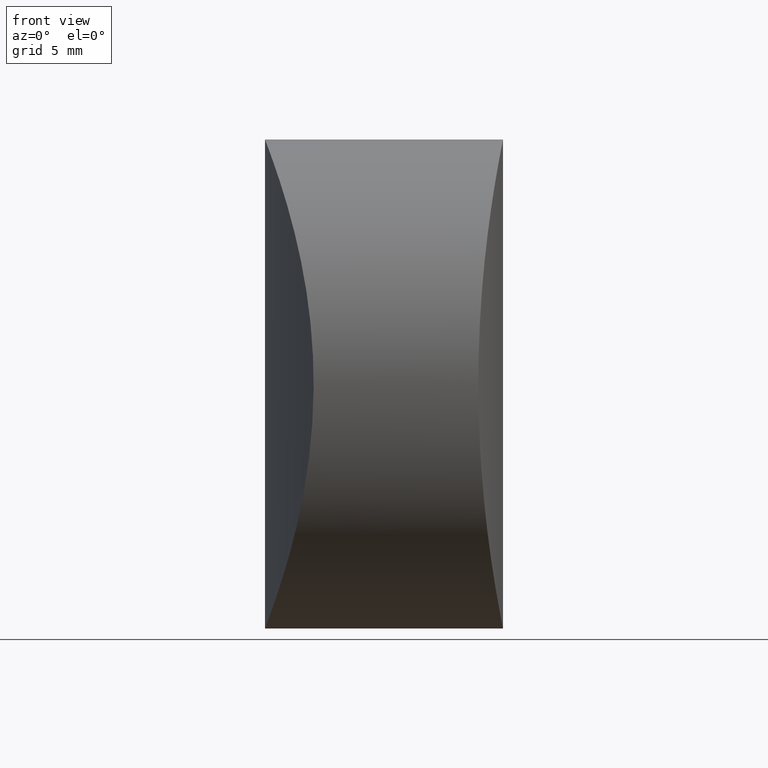
[diagram: clean part render]
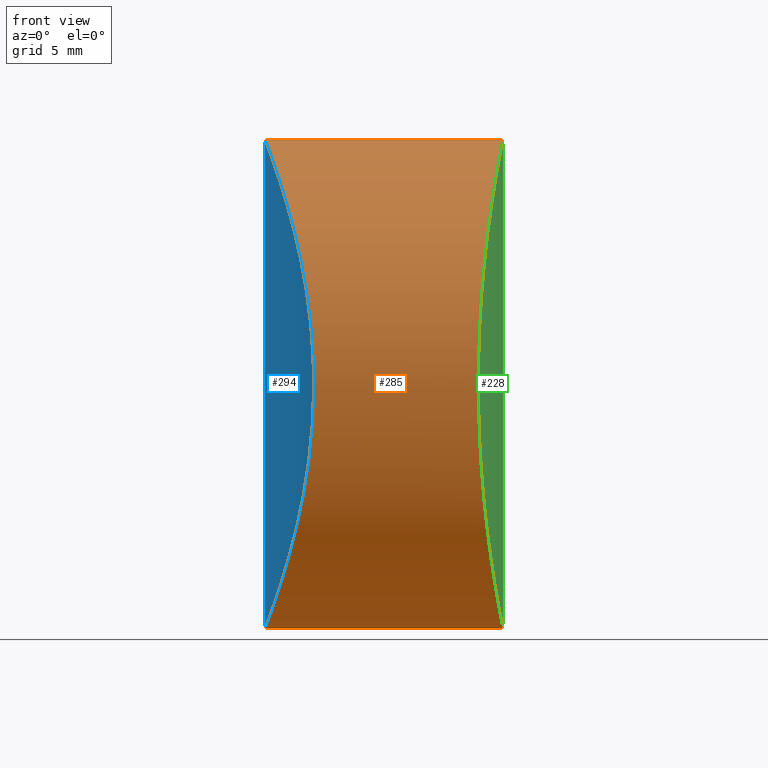
[diagram: same view with three faces highlighted in distinct colors, each labeled with its STEP entity id]
A machine part, front view with three faces highlighted in distinct colors.
Their STEP definitions:

[orange] entity #285 — the highlighted cylindrical surface (partial cylindrical patch) has radius 11.7 mm, axis along (1, -0, -0).
#5 = LINE ( 'NONE', #199, #33 ) ;
#6 = CARTESIAN_POINT ( 'NONE',  ( 2.203329720689841231, -11.39384153194677474, 14.38699747627415881 ) ) ;
#12 = CARTESIAN_POINT ( 'NONE',  ( 11.19012191953944502, -4.845000668286441936, 22.35649366731782450 ) ) ;
#13 = VERTEX_POINT ( 'NONE', #52 ) ;
#14 = CARTESIAN_POINT ( 'NONE',  ( 11.38999999999997925, -0.7746313484711072617, -7.623296525288703052E-18 ) ) ;
#15 = CARTESIAN_POINT ( 'NONE',  ( 10.76337661992678107, -8.544504710775854051, 19.70162957369397105 ) ) ;
#16 = CARTESIAN_POINT ( 'NONE',  ( 11.24508527239767730, -4.130721833659423581, 0.7467401707274722300 ) ) ;
#18 = CARTESIAN_POINT ( 'NONE',  ( 0.02984355860193690924, -1.546837325144605035, 23.32266667038803121 ) ) ;
#19 = CARTESIAN_POINT ( 'NONE',  ( 10.99255650299377152, -6.815638107333525042, 2.182499154727576496 ) ) ;
#21 = CARTESIAN_POINT ( 'NONE',  ( 0.2333021305352148966, -3.787235839957839634, 22.77682284824932779 ) ) ;
#25 = CARTESIAN_POINT ( 'NONE',  ( 0.4393118291444137458, -5.212326598288426815, 22.20276768146730006 ) ) ;
#31 = B_SPLINE_CURVE_WITH_KNOTS ( 'NONE', 3,
 ( #165, #361, #18, #358, #280, #21, #223, #25, #289, #110, #141, #206, #114, #331, #305, #344, #167, #83, #193, #191, #6, #37, #303, #333, #355, #88, #55, #107, #300, #248, #276, #364, #216, #117, #200, #150, #124, #232, #308, #95, #68, #237, #211, #183, #234, #348 ),
 .UNSPECIFIED., .F., .F.,
 ( 4, 2, 2, 2, 2, 2, 2, 2, 2, 2, 2, 2, 2, 2, 2, 2, 2, 2, 2, 2, 2, 2, 4 ),
 ( 0.05536560483768183938, 0.05767248351871658019, 0.05882592285923395059, 0.05997936219975132099, 0.06228624088078606180, 0.06343968022130343221, 0.06459311956182081649, 0.06689999824285555730, 0.06920687692389029810, 0.07036031626440766851, 0.07151375560492503891, 0.07382063428595976584, 0.07612751296699449277, 0.07728095230751186318, 0.07843439164802921970, 0.08074127032906394663, 0.08189470966958130316, 0.08304814901009865968, 0.08535502769113338661, 0.08766190637216811354, 0.08881534571268547007, 0.08996878505320282660, 0.09227566373423753965 ),
 .UNSPECIFIED. ) ;
#33 = VECTOR ( 'NONE', #58, 1000.000000000000000 ) ;
#35 = EDGE_CURVE ( 'NONE', #13, #81, #31, .T. ) ;
#37 = CARTESIAN_POINT ( 'NONE',  ( 2.296005179966759346, -11.62270594791264600, 13.24952496554009862 ) ) ;
#46 = CARTESIAN_POINT ( 'NONE',  ( 10.50622504491083831, -10.13271235799219383, 5.837919011775313471 ) ) ;
#47 = CARTESIAN_POINT ( 'NONE',  ( 10.72564368245376976, -8.808913754835984378, 3.962323986534971976 ) ) ;
#48 = CARTESIAN_POINT ( 'NONE',  ( 10.54091271044903344, -9.934096969455675108, 5.507152291055205318 ) ) ;
#49 = VERTEX_POINT ( 'NONE', #345 ) ;
#51 = CARTESIAN_POINT ( 'NONE',  ( 10.61110592407069930, -9.517653904310714452, 18.51542288815045012 ) ) ;
#52 = CARTESIAN_POINT ( 'NONE',  ( 4.449436206481902693E-15, 0.000000000000000000, 23.39999999999999858 ) ) ;
#55 = CARTESIAN_POINT ( 'NONE',  ( 2.166691515025348735, -11.30257961087441387, 8.651944902742542354 ) ) ;
#58 = DIRECTION ( 'NONE',  ( 1.000000000000000000, -0.000000000000000000, -0.000000000000000000 ) ) ;
#65 = B_SPLINE_CURVE_WITH_KNOTS ( 'NONE', 3,
 ( #163, #14, #78, #242, #157, #137, #16, #136, #189, #19, #270, #195, #85, #47, #240, #48, #46, #325, #159, #213, #271, #302, #327, #326, #264, #352, #132, #298, #103, #160, #275, #220, #354, #51, #304, #166, #15, #268, #134, #106, #241, #299, #12, #113, #133, #105, #245, #243, #353, #357 ),
 .UNSPECIFIED., .F., .F.,
 ( 4, 2, 2, 2, 2, 2, 2, 2, 2, 2, 2, 2, 2, 2, 2, 2, 2, 2, 2, 2, 2, 2, 2, 2, 4 ),
 ( 0.000000000000000000, 0.002290473230041418975, 0.003435709845062128245, 0.004580946460082837082, 0.006871419690124256491, 0.008016656305144967062, 0.009161892920165675899, 0.01145236615020709704, 0.01259760276522780241, 0.01374283938024851125, 0.01488807599526921835, 0.01603331261028992372, 0.01832378584033133792, 0.02061425907037274866, 0.02175949568539345055, 0.02290473230041414898, 0.02519520553045554584, 0.02634044214547624774, 0.02748567876049694964, 0.02977615199053836037, 0.03092138860555906574, 0.03206662522057977111, 0.03321186183560047300, 0.03435709845062118184, 0.03664757168066259257 ),
 .UNSPECIFIED. ) ;
#68 = CARTESIAN_POINT ( 'NONE',  ( 0.2352003373724248225, -3.802285619023641594, 0.6283733244599211121 ) ) ;
#69 = CARTESIAN_POINT ( 'NONE',  ( -20.00000000000000000, 1.432836755002403087E-15, 23.39999999999999858 ) ) ;
#74 = VERTEX_POINT ( 'NONE', #238 ) ;
#78 = CARTESIAN_POINT ( 'NONE',  ( 11.37463419604564052, -1.535940976776950073, 0.07616730893480527786 ) ) ;
#80 = DIRECTION ( 'NONE',  ( 1.000000000000000000, -0.000000000000000000, -0.000000000000000000 ) ) ;
#81 = VERTEX_POINT ( 'NONE', #322 ) ;
#83 = CARTESIAN_POINT ( 'NONE',  ( 2.025680596310004411, -10.94215535177057141, 15.85978225578369560 ) ) ;
#85 = CARTESIAN_POINT ( 'NONE',  ( 10.84087912694288391, -8.001901616259743832, 3.155749393242710976 ) ) ;
#88 = CARTESIAN_POINT ( 'NONE',  ( 2.204381448988872005, -11.39645168094089023, 9.024553951971117982 ) ) ;
#95 = CARTESIAN_POINT ( 'NONE',  ( 0.2826210104031649517, -4.161726287185995687, 0.7585705120081982500 ) ) ;
#103 = CARTESIAN_POINT ( 'NONE',  ( 10.28710985209049689, -11.30737688939136021, 14.73001104576472642 ) ) ;
#105 = CARTESIAN_POINT ( 'NONE',  ( 11.31157528992187089, -3.050539891455542829, 23.00181166616108541 ) ) ;
#106 = CARTESIAN_POINT ( 'NONE',  ( 11.06219887657188927, -6.193143383978470418, 21.63391341999072282 ) ) ;
#107 = CARTESIAN_POINT ( 'NONE',  ( 2.077985178345881145, -11.07714332678613367, 7.913729875734095920 ) ) ;
#110 = CARTESIAN_POINT ( 'NONE',  ( 0.7714676993486740963, -6.830949957493069213, 21.20648693102961602 ) ) ;
#113 = CARTESIAN_POINT ( 'NONE',  ( 11.24426429742982947, -4.142101250212117947, 22.64887601492828395 ) ) ;
#114 = CARTESIAN_POINT ( 'NONE',  ( 1.066384626749101949, -8.007317809831032918, 20.23905141668090835 ) ) ;
#117 = CARTESIAN_POINT ( 'NONE',  ( 1.292469386089818872, -8.797107312257725908, 3.976956997063653354 ) ) ;
#124 = CARTESIAN_POINT ( 'NONE',  ( 0.8427928073755034388, -7.157200368934555357, 2.412806143704812278 ) ) ;
#127 = DIRECTION ( 'NONE',  ( 1.000000000000000000, -0.000000000000000000, -0.000000000000000000 ) ) ;
#128 = EDGE_CURVE ( 'NONE', #13, #49, #152, .T. ) ;
#132 = CARTESIAN_POINT ( 'NONE',  ( 10.22396500224738247, -11.62380655775104543, 13.23611829673682827 ) ) ;
#133 = CARTESIAN_POINT ( 'NONE',  ( 11.26871136814263075, -3.783274938317485514, 22.77806712869331562 ) ) ;
#134 = CARTESIAN_POINT ( 'NONE',  ( 10.95493535362735926, -7.150856453735316087, 20.99224920133031702 ) ) ;
#136 = CARTESIAN_POINT ( 'NONE',  ( 11.16348420032048416, -5.192238087404311031, 1.187259222152784677 ) ) ;
#137 = CARTESIAN_POINT ( 'NONE',  ( 11.26986456937244796, -3.765577113448184132, 0.6158587178313650323 ) ) ;
#141 = CARTESIAN_POINT ( 'NONE',  ( 0.8441492237701103685, -7.139577051505185956, 20.97691678644113011 ) ) ;
#150 = CARTESIAN_POINT ( 'NONE',  ( 0.9918654042239307689, -7.742500690034104238, 2.895818075249361190 ) ) ;
#152 = LINE ( 'NONE', #69, #278 ) ;
#157 = CARTESIAN_POINT ( 'NONE',  ( 11.31265727765712903, -3.029920609330150949, 0.3925979968183618274 ) ) ;
#159 = CARTESIAN_POINT ( 'NONE',  ( 10.41154747799908975, -10.65660670264508880, 6.855249416653355077 ) ) ;
#160 = CARTESIAN_POINT ( 'NONE',  ( 10.33063240543323502, -11.08412693469862376, 15.46561670270440381 ) ) ;
#163 = CARTESIAN_POINT ( 'NONE',  ( 11.38999999999997570, 0.000000000000000000, 0.000000000000000000 ) ) ;
#165 = CARTESIAN_POINT ( 'NONE',  ( 4.449436206481902693E-15, 0.000000000000000000, 23.39999999999999858 ) ) ;
#166 = CARTESIAN_POINT ( 'NONE',  ( 10.72483795033419618, -8.800887155657946437, 19.41892752074146955 ) ) ;
#167 = CARTESIAN_POINT ( 'NONE',  ( 1.859638507971006272, -10.50243021986732295, 16.91221335979967932 ) ) ;
#173 = ORIENTED_EDGE ( 'NONE', *, *, #35, .T. ) ;
#183 = CARTESIAN_POINT ( 'NONE',  ( 0.02985549774942002771, -1.550017416828789019, 0.07734414751516439923 ) ) ;
#186 = AXIS2_PLACEMENT_3D ( 'NONE', #217, #80, #330 ) ;
#189 = CARTESIAN_POINT ( 'NONE',  ( 11.09899048988026138, -5.863226998365522746, 1.546402127066946575 ) ) ;
#191 = CARTESIAN_POINT ( 'NONE',  ( 2.164848509593687353, -11.29795058624819681, 14.76502085685476651 ) ) ;
#193 = CARTESIAN_POINT ( 'NONE',  ( 2.076050317006086221, -11.07216898665752502, 15.50067286584362591 ) ) ;
#195 = CARTESIAN_POINT ( 'NONE',  ( 10.87934292869398334, -7.719189746639965044, 2.899341339868234169 ) ) ;
#199 = CARTESIAN_POINT ( 'NONE',  ( -20.00000000000000000, 0.000000000000000000, 0.000000000000000000 ) ) ;
#200 = CARTESIAN_POINT ( 'NONE',  ( 1.217054262653216368, -8.542948001562418625, 3.696842903114930579 ) ) ;
#206 = CARTESIAN_POINT ( 'NONE',  ( 0.9915028469543601952, -7.727180853317330289, 20.49348745362491186 ) ) ;
#211 = CARTESIAN_POINT ( 'NONE',  ( 0.1160532312630918189, -2.687819650294078322, 0.3063484215140153122 ) ) ;
#212 = CYLINDRICAL_SURFACE ( 'NONE', #186, 11.69999999999999929 ) ;
#213 = CARTESIAN_POINT ( 'NONE',  ( 10.35662576223147369, -10.94895943076386757, 7.558120956234373189 ) ) ;
#214 = EDGE_CURVE ( 'NONE', #74, #49, #65, .T. ) ;
#216 = CARTESIAN_POINT ( 'NONE',  ( 1.441933343624340003, -9.279851264670789135, 4.564255414172224690 ) ) ;
#217 = CARTESIAN_POINT ( 'NONE',  ( -20.00000000000000000, 0.000000000000000000, 11.69999999999999929 ) ) ;
#218 = EDGE_LOOP ( 'NONE', ( #244, #173, #265, #282 ) ) ;
#220 = CARTESIAN_POINT ( 'NONE',  ( 10.43858503350812050, -10.51278570214456920, 16.89213574289652087 ) ) ;
#223 = CARTESIAN_POINT ( 'NONE',  ( 0.2812853370252301755, -4.152190924252253446, 22.64513270422437685 ) ) ;
#232 = CARTESIAN_POINT ( 'NONE',  ( 0.5648056535427753433, -5.884406220572350854, 1.558439455548598973 ) ) ;
#234 = CARTESIAN_POINT ( 'NONE',  ( 4.391018798566293747E-15, -0.7806210482935579398, 5.951818176040223623E-16 ) ) ;
#237 = CARTESIAN_POINT ( 'NONE',  ( 0.1519369632465821796, -3.066032103543928411, 0.4023126122554331330 ) ) ;
#238 = CARTESIAN_POINT ( 'NONE',  ( 11.38999999999997570, 0.000000000000000000, 0.000000000000000000 ) ) ;
#240 = CARTESIAN_POINT ( 'NONE',  ( 10.64900343733908983, -9.292496470755336802, 4.549469200127547630 ) ) ;
#241 = CARTESIAN_POINT ( 'NONE',  ( 11.09655340141737234, -5.862368244817429463, 21.83254687041267417 ) ) ;
#242 = CARTESIAN_POINT ( 'NONE',  ( 11.33075744563289966, -2.658827774625768914, 0.2997243391493734643 ) ) ;
#243 = CARTESIAN_POINT ( 'NONE',  ( 11.37462737317586381, -1.540062197894460638, 23.32382807291207527 ) ) ;
#244 = ORIENTED_EDGE ( 'NONE', *, *, #128, .F. ) ;
#245 = CARTESIAN_POINT ( 'NONE',  ( 11.33005591743290275, -2.674760554514105770, 23.09668586197390283 ) ) ;
#248 = CARTESIAN_POINT ( 'NONE',  ( 1.860184218977720461, -10.50396351071669976, 6.490212009386144842 ) ) ;
#264 = CARTESIAN_POINT ( 'NONE',  ( 10.20826313417692965, -11.70001478711865417, 10.92560694274054356 ) ) ;
#265 = ORIENTED_EDGE ( 'NONE', *, *, #347, .T. ) ;
#268 = CARTESIAN_POINT ( 'NONE',  ( 10.87860890339282527, -7.737988367677899326, 20.50863680543251277 ) ) ;
#270 = CARTESIAN_POINT ( 'NONE',  ( 10.95527449060790381, -7.125458816484926849, 2.412087433047132468 ) ) ;
#271 = CARTESIAN_POINT ( 'NONE',  ( 10.33178806972052932, -11.07813773534511981, 7.916933257294127557 ) ) ;
#275 = CARTESIAN_POINT ( 'NONE',  ( 10.35580859865190995, -10.95325725530211258, 15.83072508128309508 ) ) ;
#276 = CARTESIAN_POINT ( 'NONE',  ( 1.729495245799774539, -10.14472136170421734, 5.821696620563346691 ) ) ;
#278 = VECTOR ( 'NONE', #127, 1000.000000000000000 ) ;
#280 = CARTESIAN_POINT ( 'NONE',  ( 0.1501598777853716538, -3.048504996651061560, 23.00246773958470570 ) ) ;
#282 = ORIENTED_EDGE ( 'NONE', *, *, #214, .T. ) ;
#285 = ADVANCED_FACE ( 'NONE', ( #360 ), #212, .T. ) ;
#289 = CARTESIAN_POINT ( 'NONE',  ( 0.5643084334512815659, -5.881481381366949535, 21.84292172537480425 ) ) ;
#298 = CARTESIAN_POINT ( 'NONE',  ( 10.26867669605029754, -11.40024834571417145, 14.35894193889933135 ) ) ;
#299 = CARTESIAN_POINT ( 'NONE',  ( 11.16042525787660722, -5.189073437424381652, 22.19330188167528561 ) ) ;
#300 = CARTESIAN_POINT ( 'NONE',  ( 2.027016792045332583, -10.94564927628085549, 7.549211279039196754 ) ) ;
#302 = CARTESIAN_POINT ( 'NONE',  ( 10.28819648789328056, -11.30186109005047257, 8.649645010126221223 ) ) ;
#303 = CARTESIAN_POINT ( 'NONE',  ( 2.328408094456684285, -11.70003497773812029, 12.48015793367318871 ) ) ;
#304 = CARTESIAN_POINT ( 'NONE',  ( 10.64861114196134295, -9.288081554115876770, 18.82523668667768391 ) ) ;
#305 = CARTESIAN_POINT ( 'NONE',  ( 1.442920808392726739, -9.290410718415410329, 18.85295612069872817 ) ) ;
#308 = CARTESIAN_POINT ( 'NONE',  ( 0.4399038104423934059, -5.215130123816415164, 1.198962074524797750 ) ) ;
#322 = CARTESIAN_POINT ( 'NONE',  ( 4.422331152220252180E-15, 0.000000000000000000, 6.814343606956653858E-16 ) ) ;
#325 = CARTESIAN_POINT ( 'NONE',  ( 10.44163273695992977, -10.49343172236137711, 6.511190509331347798 ) ) ;
#326 = CARTESIAN_POINT ( 'NONE',  ( 10.22396210654188486, -11.62385279200474564, 10.16012266920396456 ) ) ;
#327 = CARTESIAN_POINT ( 'NONE',  ( 10.26937765810495584, -11.39672729195002709, 9.025415730633008948 ) ) ;
#330 = DIRECTION ( 'NONE',  ( 0.000000000000000000, 0.000000000000000000, -1.000000000000000000 ) ) ;
#331 = CARTESIAN_POINT ( 'NONE',  ( 1.291611767093800545, -8.808098286206519134, 19.43805886498390478 ) ) ;
#333 = CARTESIAN_POINT ( 'NONE',  ( 2.328379093129673727, -11.69996499875946583, 10.91879329907373197 ) ) ;
#344 = CARTESIAN_POINT ( 'NONE',  ( 1.729040493178132465, -10.14355982301948345, 17.58087635461878406 ) ) ;
#345 = CARTESIAN_POINT ( 'NONE',  ( 11.38999999999997570, 1.432836755002403087E-15, 23.39999999999999858 ) ) ;
#347 = EDGE_CURVE ( 'NONE', #81, #74, #5, .T. ) ;
#348 = CARTESIAN_POINT ( 'NONE',  ( 4.422331152220252180E-15, 0.000000000000000000, 6.814343606956653858E-16 ) ) ;
#352 = CARTESIAN_POINT ( 'NONE',  ( 10.20826917078851181, -11.69998520861648039, 12.47483981833811839 ) ) ;
#353 = CARTESIAN_POINT ( 'NONE',  ( 11.38999999999997570, -0.7745959452269715051, 23.39999999999999503 ) ) ;
#354 = CARTESIAN_POINT ( 'NONE',  ( 10.50384607542333626, -10.15368759170652524, 17.56306474774825332 ) ) ;
#355 = CARTESIAN_POINT ( 'NONE',  ( 2.295970490639245742, -11.62259408221126300, 10.15281006728879376 ) ) ;
#357 = CARTESIAN_POINT ( 'NONE',  ( 11.38999999999997570, 1.432836755002403087E-15, 23.39999999999999858 ) ) ;
#358 = CARTESIAN_POINT ( 'NONE',  ( 0.1150199625294544975, -2.675664409019711698, 23.09640695704822377 ) ) ;
#360 = FACE_OUTER_BOUND ( 'NONE', #218, .T. ) ;
#361 = CARTESIAN_POINT ( 'NONE',  ( 4.406265391616868786E-15, -0.7806417529968112667, 23.40000000000000568 ) ) ;
#364 = CARTESIAN_POINT ( 'NONE',  ( 1.516230420143034108, -9.509100512893947865, 4.872704564213685252 ) ) ;

[blue] entity #294 — the highlighted cylindrical surface (partial cylindrical patch) has radius 30.56 mm, axis along (-0, -0, -1).
#1 = AXIS2_PLACEMENT_3D ( 'NONE', #332, #91, #231 ) ;
#6 = CARTESIAN_POINT ( 'NONE',  ( 2.203329720689841231, -11.39384153194677474, 14.38699747627415881 ) ) ;
#13 = VERTEX_POINT ( 'NONE', #52 ) ;
#18 = CARTESIAN_POINT ( 'NONE',  ( 0.02984355860193690924, -1.546837325144605035, 23.32266667038803121 ) ) ;
#21 = CARTESIAN_POINT ( 'NONE',  ( 0.2333021305352148966, -3.787235839957839634, 22.77682284824932779 ) ) ;
#25 = CARTESIAN_POINT ( 'NONE',  ( 0.4393118291444137458, -5.212326598288426815, 22.20276768146730006 ) ) ;
#31 = B_SPLINE_CURVE_WITH_KNOTS ( 'NONE', 3,
 ( #165, #361, #18, #358, #280, #21, #223, #25, #289, #110, #141, #206, #114, #331, #305, #344, #167, #83, #193, #191, #6, #37, #303, #333, #355, #88, #55, #107, #300, #248, #276, #364, #216, #117, #200, #150, #124, #232, #308, #95, #68, #237, #211, #183, #234, #348 ),
 .UNSPECIFIED., .F., .F.,
 ( 4, 2, 2, 2, 2, 2, 2, 2, 2, 2, 2, 2, 2, 2, 2, 2, 2, 2, 2, 2, 2, 2, 4 ),
 ( 0.05536560483768183938, 0.05767248351871658019, 0.05882592285923395059, 0.05997936219975132099, 0.06228624088078606180, 0.06343968022130343221, 0.06459311956182081649, 0.06689999824285555730, 0.06920687692389029810, 0.07036031626440766851, 0.07151375560492503891, 0.07382063428595976584, 0.07612751296699449277, 0.07728095230751186318, 0.07843439164802921970, 0.08074127032906394663, 0.08189470966958130316, 0.08304814901009865968, 0.08535502769113338661, 0.08766190637216811354, 0.08881534571268547007, 0.08996878505320282660, 0.09227566373423753965 ),
 .UNSPECIFIED. ) ;
#35 = EDGE_CURVE ( 'NONE', #13, #81, #31, .T. ) ;
#37 = CARTESIAN_POINT ( 'NONE',  ( 2.296005179966759346, -11.62270594791264600, 13.24952496554009862 ) ) ;
#39 = EDGE_CURVE ( 'NONE', #13, #81, #350, .T. ) ;
#42 = DIRECTION ( 'NONE',  ( -0.000000000000000000, -0.000000000000000000, -1.000000000000000000 ) ) ;
#44 = ORIENTED_EDGE ( 'NONE', *, *, #35, .F. ) ;
#52 = CARTESIAN_POINT ( 'NONE',  ( 4.449436206481902693E-15, 0.000000000000000000, 23.39999999999999858 ) ) ;
#55 = CARTESIAN_POINT ( 'NONE',  ( 2.166691515025348735, -11.30257961087441387, 8.651944902742542354 ) ) ;
#68 = CARTESIAN_POINT ( 'NONE',  ( 0.2352003373724248225, -3.802285619023641594, 0.6283733244599211121 ) ) ;
#75 = VECTOR ( 'NONE', #42, 1000.000000000000000 ) ;
#81 = VERTEX_POINT ( 'NONE', #322 ) ;
#82 = FACE_OUTER_BOUND ( 'NONE', #197, .T. ) ;
#83 = CARTESIAN_POINT ( 'NONE',  ( 2.025680596310004411, -10.94215535177057141, 15.85978225578369560 ) ) ;
#88 = CARTESIAN_POINT ( 'NONE',  ( 2.204381448988872005, -11.39645168094089023, 9.024553951971117982 ) ) ;
#91 = DIRECTION ( 'NONE',  ( -0.000000000000000000, -0.000000000000000000, -1.000000000000000000 ) ) ;
#95 = CARTESIAN_POINT ( 'NONE',  ( 0.2826210104031649517, -4.161726287185995687, 0.7585705120081982500 ) ) ;
#107 = CARTESIAN_POINT ( 'NONE',  ( 2.077985178345881145, -11.07714332678613367, 7.913729875734095920 ) ) ;
#110 = CARTESIAN_POINT ( 'NONE',  ( 0.7714676993486740963, -6.830949957493069213, 21.20648693102961602 ) ) ;
#114 = CARTESIAN_POINT ( 'NONE',  ( 1.066384626749101949, -8.007317809831032918, 20.23905141668090835 ) ) ;
#117 = CARTESIAN_POINT ( 'NONE',  ( 1.292469386089818872, -8.797107312257725908, 3.976956997063653354 ) ) ;
#124 = CARTESIAN_POINT ( 'NONE',  ( 0.8427928073755034388, -7.157200368934555357, 2.412806143704812278 ) ) ;
#141 = CARTESIAN_POINT ( 'NONE',  ( 0.8441492237701103685, -7.139577051505185956, 20.97691678644113011 ) ) ;
#150 = CARTESIAN_POINT ( 'NONE',  ( 0.9918654042239307689, -7.742500690034104238, 2.895818075249361190 ) ) ;
#165 = CARTESIAN_POINT ( 'NONE',  ( 4.449436206481902693E-15, 0.000000000000000000, 23.39999999999999858 ) ) ;
#167 = CARTESIAN_POINT ( 'NONE',  ( 1.859638507971006272, -10.50243021986732295, 16.91221335979967932 ) ) ;
#183 = CARTESIAN_POINT ( 'NONE',  ( 0.02985549774942002771, -1.550017416828789019, 0.07734414751516439923 ) ) ;
#191 = CARTESIAN_POINT ( 'NONE',  ( 2.164848509593687353, -11.29795058624819681, 14.76502085685476651 ) ) ;
#192 = CYLINDRICAL_SURFACE ( 'NONE', #1, 30.55999999999999517 ) ;
#193 = CARTESIAN_POINT ( 'NONE',  ( 2.076050317006086221, -11.07216898665752502, 15.50067286584362591 ) ) ;
#197 = EDGE_LOOP ( 'NONE', ( #44, #315 ) ) ;
#200 = CARTESIAN_POINT ( 'NONE',  ( 1.217054262653216368, -8.542948001562418625, 3.696842903114930579 ) ) ;
#206 = CARTESIAN_POINT ( 'NONE',  ( 0.9915028469543601952, -7.727180853317330289, 20.49348745362491186 ) ) ;
#211 = CARTESIAN_POINT ( 'NONE',  ( 0.1160532312630918189, -2.687819650294078322, 0.3063484215140153122 ) ) ;
#216 = CARTESIAN_POINT ( 'NONE',  ( 1.441933343624340003, -9.279851264670789135, 4.564255414172224690 ) ) ;
#223 = CARTESIAN_POINT ( 'NONE',  ( 0.2812853370252301755, -4.152190924252253446, 22.64513270422437685 ) ) ;
#231 = DIRECTION ( 'NONE',  ( -1.000000000000000000, 0.000000000000000000, 0.000000000000000000 ) ) ;
#232 = CARTESIAN_POINT ( 'NONE',  ( 0.5648056535427753433, -5.884406220572350854, 1.558439455548598973 ) ) ;
#234 = CARTESIAN_POINT ( 'NONE',  ( 4.391018798566293747E-15, -0.7806210482935579398, 5.951818176040223623E-16 ) ) ;
#237 = CARTESIAN_POINT ( 'NONE',  ( 0.1519369632465821796, -3.066032103543928411, 0.4023126122554331330 ) ) ;
#248 = CARTESIAN_POINT ( 'NONE',  ( 1.860184218977720461, -10.50396351071669976, 6.490212009386144842 ) ) ;
#276 = CARTESIAN_POINT ( 'NONE',  ( 1.729495245799774539, -10.14472136170421734, 5.821696620563346691 ) ) ;
#280 = CARTESIAN_POINT ( 'NONE',  ( 0.1501598777853716538, -3.048504996651061560, 23.00246773958470570 ) ) ;
#289 = CARTESIAN_POINT ( 'NONE',  ( 0.5643084334512815659, -5.881481381366949535, 21.84292172537480425 ) ) ;
#294 = ADVANCED_FACE ( 'NONE', ( #82 ), #192, .T. ) ;
#296 = CARTESIAN_POINT ( 'NONE',  ( 3.469446951953614189E-15, 0.000000000000000000, 23.39999999999999858 ) ) ;
#300 = CARTESIAN_POINT ( 'NONE',  ( 2.027016792045332583, -10.94564927628085549, 7.549211279039196754 ) ) ;
#303 = CARTESIAN_POINT ( 'NONE',  ( 2.328408094456684285, -11.70003497773812029, 12.48015793367318871 ) ) ;
#305 = CARTESIAN_POINT ( 'NONE',  ( 1.442920808392726739, -9.290410718415410329, 18.85295612069872817 ) ) ;
#308 = CARTESIAN_POINT ( 'NONE',  ( 0.4399038104423934059, -5.215130123816415164, 1.198962074524797750 ) ) ;
#315 = ORIENTED_EDGE ( 'NONE', *, *, #39, .T. ) ;
#322 = CARTESIAN_POINT ( 'NONE',  ( 4.422331152220252180E-15, 0.000000000000000000, 6.814343606956653858E-16 ) ) ;
#331 = CARTESIAN_POINT ( 'NONE',  ( 1.291611767093800545, -8.808098286206519134, 19.43805886498390478 ) ) ;
#332 = CARTESIAN_POINT ( 'NONE',  ( 30.55999999999999872, 0.000000000000000000, 23.39999999999999858 ) ) ;
#333 = CARTESIAN_POINT ( 'NONE',  ( 2.328379093129673727, -11.69996499875946583, 10.91879329907373197 ) ) ;
#344 = CARTESIAN_POINT ( 'NONE',  ( 1.729040493178132465, -10.14355982301948345, 17.58087635461878406 ) ) ;
#348 = CARTESIAN_POINT ( 'NONE',  ( 4.422331152220252180E-15, 0.000000000000000000, 6.814343606956653858E-16 ) ) ;
#350 = LINE ( 'NONE', #296, #75 ) ;
#355 = CARTESIAN_POINT ( 'NONE',  ( 2.295970490639245742, -11.62259408221126300, 10.15281006728879376 ) ) ;
#358 = CARTESIAN_POINT ( 'NONE',  ( 0.1150199625294544975, -2.675664409019711698, 23.09640695704822377 ) ) ;
#361 = CARTESIAN_POINT ( 'NONE',  ( 4.406265391616868786E-15, -0.7806417529968112667, 23.40000000000000568 ) ) ;
#364 = CARTESIAN_POINT ( 'NONE',  ( 1.516230420143034108, -9.509100512893947865, 4.872704564213685252 ) ) ;

[green] entity #228 — the highlighted cylindrical surface (partial cylindrical patch) has radius 58.51 mm, axis along (-0, -0, -1).
#2 = CARTESIAN_POINT ( 'NONE',  ( 10.50622504491084186, 10.13271235799219383, 17.56208098822468244 ) ) ;
#4 = CARTESIAN_POINT ( 'NONE',  ( 11.38999999999997570, 0.000000000000000000, 0.000000000000000000 ) ) ;
#12 = CARTESIAN_POINT ( 'NONE',  ( 11.19012191953944502, -4.845000668286441936, 22.35649366731782450 ) ) ;
#14 = CARTESIAN_POINT ( 'NONE',  ( 11.38999999999997925, -0.7746313484711072617, -7.623296525288703052E-18 ) ) ;
#15 = CARTESIAN_POINT ( 'NONE',  ( 10.76337661992678107, -8.544504710775854051, 19.70162957369397105 ) ) ;
#16 = CARTESIAN_POINT ( 'NONE',  ( 11.24508527239767730, -4.130721833659423581, 0.7467401707274722300 ) ) ;
#19 = CARTESIAN_POINT ( 'NONE',  ( 10.99255650299377152, -6.815638107333525042, 2.182499154727576496 ) ) ;
#24 = CARTESIAN_POINT ( 'NONE',  ( 10.41154747799908442, 10.65660670264508525, 16.54475058334664439 ) ) ;
#30 = CARTESIAN_POINT ( 'NONE',  ( 10.20826313417692965, 11.70001478711865062, 12.47439305725944791 ) ) ;
#34 = CARTESIAN_POINT ( 'NONE',  ( 10.33063240543324746, 11.08412693469862376, 7.934383297295575233 ) ) ;
#46 = CARTESIAN_POINT ( 'NONE',  ( 10.50622504491083831, -10.13271235799219383, 5.837919011775313471 ) ) ;
#47 = CARTESIAN_POINT ( 'NONE',  ( 10.72564368245376976, -8.808913754835984378, 3.962323986534971976 ) ) ;
#48 = CARTESIAN_POINT ( 'NONE',  ( 10.54091271044903344, -9.934096969455675108, 5.507152291055205318 ) ) ;
#49 = VERTEX_POINT ( 'NONE', #345 ) ;
#51 = CARTESIAN_POINT ( 'NONE',  ( 10.61110592407069930, -9.517653904310714452, 18.51542288815045012 ) ) ;
#54 = CARTESIAN_POINT ( 'NONE',  ( 11.33005591743289564, 2.674760554514123090, 0.3033141380260955255 ) ) ;
#56 = AXIS2_PLACEMENT_3D ( 'NONE', #215, #297, #79 ) ;
#61 = CARTESIAN_POINT ( 'NONE',  ( 11.09899048988026138, 5.863226998365520082, 21.85359787293305445 ) ) ;
#63 = CARTESIAN_POINT ( 'NONE',  ( 11.19012191953944679, 4.845000668286446377, 1.043506332682181847 ) ) ;
#65 = B_SPLINE_CURVE_WITH_KNOTS ( 'NONE', 3,
 ( #163, #14, #78, #242, #157, #137, #16, #136, #189, #19, #270, #195, #85, #47, #240, #48, #46, #325, #159, #213, #271, #302, #327, #326, #264, #352, #132, #298, #103, #160, #275, #220, #354, #51, #304, #166, #15, #268, #134, #106, #241, #299, #12, #113, #133, #105, #245, #243, #353, #357 ),
 .UNSPECIFIED., .F., .F.,
 ( 4, 2, 2, 2, 2, 2, 2, 2, 2, 2, 2, 2, 2, 2, 2, 2, 2, 2, 2, 2, 2, 2, 2, 2, 4 ),
 ( 0.000000000000000000, 0.002290473230041418975, 0.003435709845062128245, 0.004580946460082837082, 0.006871419690124256491, 0.008016656305144967062, 0.009161892920165675899, 0.01145236615020709704, 0.01259760276522780241, 0.01374283938024851125, 0.01488807599526921835, 0.01603331261028992372, 0.01832378584033133792, 0.02061425907037274866, 0.02175949568539345055, 0.02290473230041414898, 0.02519520553045554584, 0.02634044214547624774, 0.02748567876049694964, 0.02977615199053836037, 0.03092138860555906574, 0.03206662522057977111, 0.03321186183560047300, 0.03435709845062118184, 0.03664757168066259257 ),
 .UNSPECIFIED. ) ;
#74 = VERTEX_POINT ( 'NONE', #238 ) ;
#78 = CARTESIAN_POINT ( 'NONE',  ( 11.37463419604564052, -1.535940976776950073, 0.07616730893480527786 ) ) ;
#79 = DIRECTION ( 'NONE',  ( -1.000000000000000000, 0.000000000000000000, 0.000000000000000000 ) ) ;
#85 = CARTESIAN_POINT ( 'NONE',  ( 10.84087912694288391, -8.001901616259743832, 3.155749393242710976 ) ) ;
#86 = EDGE_LOOP ( 'NONE', ( #328, #255 ) ) ;
#87 = CARTESIAN_POINT ( 'NONE',  ( 11.26871136814262897, 3.783274938317503722, 0.6219328713066870629 ) ) ;
#90 = CARTESIAN_POINT ( 'NONE',  ( 11.24508527239767552, 4.130721833659423581, 22.65325982927251758 ) ) ;
#93 = CARTESIAN_POINT ( 'NONE',  ( 11.24426429742982414, 4.142101250212122387, 0.7511239850717073008 ) ) ;
#94 = CARTESIAN_POINT ( 'NONE',  ( 11.31265727765713258, 3.029920609330154502, 23.00740200318163531 ) ) ;
#103 = CARTESIAN_POINT ( 'NONE',  ( 10.28710985209049689, -11.30737688939136021, 14.73001104576472642 ) ) ;
#105 = CARTESIAN_POINT ( 'NONE',  ( 11.31157528992187089, -3.050539891455542829, 23.00181166616108541 ) ) ;
#106 = CARTESIAN_POINT ( 'NONE',  ( 11.06219887657188927, -6.193143383978470418, 21.63391341999072282 ) ) ;
#109 = FACE_OUTER_BOUND ( 'NONE', #86, .T. ) ;
#113 = CARTESIAN_POINT ( 'NONE',  ( 11.24426429742982947, -4.142101250212117947, 22.64887601492828395 ) ) ;
#119 = CARTESIAN_POINT ( 'NONE',  ( 10.44163273695993155, 10.49343172236137711, 16.88880949066864900 ) ) ;
#121 = CARTESIAN_POINT ( 'NONE',  ( 10.72483795033419263, 8.800887155657942884, 3.981072479258528141 ) ) ;
#123 = CARTESIAN_POINT ( 'NONE',  ( 11.38999999999997570, 0.7746313484711082609, 23.40000000000000568 ) ) ;
#132 = CARTESIAN_POINT ( 'NONE',  ( 10.22396500224738247, -11.62380655775104543, 13.23611829673682827 ) ) ;
#133 = CARTESIAN_POINT ( 'NONE',  ( 11.26871136814263075, -3.783274938317485514, 22.77806712869331562 ) ) ;
#134 = CARTESIAN_POINT ( 'NONE',  ( 10.95493535362735926, -7.150856453735316087, 20.99224920133031702 ) ) ;
#136 = CARTESIAN_POINT ( 'NONE',  ( 11.16348420032048416, -5.192238087404311031, 1.187259222152784677 ) ) ;
#137 = CARTESIAN_POINT ( 'NONE',  ( 11.26986456937244796, -3.765577113448184132, 0.6158587178313650323 ) ) ;
#140 = CARTESIAN_POINT ( 'NONE',  ( 10.35662576223146658, 10.94895943076386224, 15.84187904376562628 ) ) ;
#143 = CARTESIAN_POINT ( 'NONE',  ( 10.95527449060790559, 7.125458816484925961, 20.98791256695286833 ) ) ;
#145 = CARTESIAN_POINT ( 'NONE',  ( 11.06219887657188394, 6.193143383978466865, 1.766086580009278206 ) ) ;
#148 = CARTESIAN_POINT ( 'NONE',  ( 10.76337661992677930, 8.544504710775850498, 3.698370426306029746 ) ) ;
#149 = CARTESIAN_POINT ( 'NONE',  ( 10.54091271044904410, 9.934096969455678661, 17.89284770894479948 ) ) ;
#157 = CARTESIAN_POINT ( 'NONE',  ( 11.31265727765712903, -3.029920609330150949, 0.3925979968183618274 ) ) ;
#159 = CARTESIAN_POINT ( 'NONE',  ( 10.41154747799908975, -10.65660670264508880, 6.855249416653355077 ) ) ;
#160 = CARTESIAN_POINT ( 'NONE',  ( 10.33063240543323502, -11.08412693469862376, 15.46561670270440381 ) ) ;
#162 = B_SPLINE_CURVE_WITH_KNOTS ( 'NONE', 3,
 ( #178, #123, #251, #204, #94, #314, #90, #307, #61, #284, #143, #254, #203, #366, #250, #149, #2, #119, #24, #140, #311, #343, #247, #363, #30, #288, #225, #279, #226, #34, #201, #205, #313, #339, #340, #121, #148, #174, #229, #145, #342, #253, #63, #93, #87, #177, #54, #169, #287, #4 ),
 .UNSPECIFIED., .F., .F.,
 ( 4, 2, 2, 2, 2, 2, 2, 2, 2, 2, 2, 2, 2, 2, 2, 2, 2, 2, 2, 2, 2, 2, 2, 2, 4 ),
 ( 0.03664757168066259257, 0.03893814959777788798, 0.04008343855633553915, 0.04122872751489319032, 0.04351930543200848572, 0.04466459439056613689, 0.04580988334912378807, 0.04810046126623908347, 0.04924575022479672770, 0.05039103918335436499, 0.05153632814191200229, 0.05268161710046964652, 0.05497219501758492111, 0.05726277293470020957, 0.05840806189325785380, 0.05955335085181549803, 0.06184392876893078650, 0.06298921772748843073, 0.06413450668604607496, 0.06642508460316137731, 0.06757037356171902154, 0.06871566252027666577, 0.06986095147883431000, 0.07100624043739196811, 0.07329681835450725658 ),
 .UNSPECIFIED. ) ;
#163 = CARTESIAN_POINT ( 'NONE',  ( 11.38999999999997570, 0.000000000000000000, 0.000000000000000000 ) ) ;
#166 = CARTESIAN_POINT ( 'NONE',  ( 10.72483795033419618, -8.800887155657946437, 19.41892752074146955 ) ) ;
#169 = CARTESIAN_POINT ( 'NONE',  ( 11.37462737317585848, 1.540062197894479734, 0.07617192708792978884 ) ) ;
#174 = CARTESIAN_POINT ( 'NONE',  ( 10.87860890339282527, 7.737988367677893997, 2.891363194567481365 ) ) ;
#177 = CARTESIAN_POINT ( 'NONE',  ( 11.31157528992186734, 3.050539891455560149, 0.3981883338389094473 ) ) ;
#178 = CARTESIAN_POINT ( 'NONE',  ( 11.38999999999997570, 1.432836755002403087E-15, 23.39999999999999858 ) ) ;
#188 = CYLINDRICAL_SURFACE ( 'NONE', #56, 58.50999999999999091 ) ;
#189 = CARTESIAN_POINT ( 'NONE',  ( 11.09899048988026138, -5.863226998365522746, 1.546402127066946575 ) ) ;
#195 = CARTESIAN_POINT ( 'NONE',  ( 10.87934292869398334, -7.719189746639965044, 2.899341339868234169 ) ) ;
#201 = CARTESIAN_POINT ( 'NONE',  ( 10.35580859865191172, 10.95325725530211436, 7.569274918716888401 ) ) ;
#203 = CARTESIAN_POINT ( 'NONE',  ( 10.84087912694287681, 8.001901616259747385, 20.24425060675728716 ) ) ;
#204 = CARTESIAN_POINT ( 'NONE',  ( 11.33075744563290677, 2.658827774625768026, 23.10027566085063100 ) ) ;
#205 = CARTESIAN_POINT ( 'NONE',  ( 10.43858503350812050, 10.51278570214456742, 6.507864257103472383 ) ) ;
#213 = CARTESIAN_POINT ( 'NONE',  ( 10.35662576223147369, -10.94895943076386757, 7.558120956234373189 ) ) ;
#214 = EDGE_CURVE ( 'NONE', #74, #49, #65, .T. ) ;
#215 = CARTESIAN_POINT ( 'NONE',  ( -47.12000000000001165, 0.000000000000000000, 23.39999999999999858 ) ) ;
#220 = CARTESIAN_POINT ( 'NONE',  ( 10.43858503350812050, -10.51278570214456920, 16.89213574289652087 ) ) ;
#225 = CARTESIAN_POINT ( 'NONE',  ( 10.22396500224738425, 11.62380655775104543, 10.16388170326317031 ) ) ;
#226 = CARTESIAN_POINT ( 'NONE',  ( 10.28710985209050399, 11.30737688939135488, 8.669988954235254397 ) ) ;
#228 = ADVANCED_FACE ( 'NONE', ( #109 ), #188, .T. ) ;
#229 = CARTESIAN_POINT ( 'NONE',  ( 10.95493535362735749, 7.150856453735316975, 2.407750798669677117 ) ) ;
#238 = CARTESIAN_POINT ( 'NONE',  ( 11.38999999999997570, 0.000000000000000000, 0.000000000000000000 ) ) ;
#240 = CARTESIAN_POINT ( 'NONE',  ( 10.64900343733908983, -9.292496470755336802, 4.549469200127547630 ) ) ;
#241 = CARTESIAN_POINT ( 'NONE',  ( 11.09655340141737234, -5.862368244817429463, 21.83254687041267417 ) ) ;
#242 = CARTESIAN_POINT ( 'NONE',  ( 11.33075744563289966, -2.658827774625768914, 0.2997243391493734643 ) ) ;
#243 = CARTESIAN_POINT ( 'NONE',  ( 11.37462737317586381, -1.540062197894460638, 23.32382807291207527 ) ) ;
#245 = CARTESIAN_POINT ( 'NONE',  ( 11.33005591743290275, -2.674760554514105770, 23.09668586197390283 ) ) ;
#247 = CARTESIAN_POINT ( 'NONE',  ( 10.26937765810495584, 11.39672729195003065, 14.37458426936698075 ) ) ;
#250 = CARTESIAN_POINT ( 'NONE',  ( 10.64900343733909693, 9.292496470755340354, 18.85053079987245894 ) ) ;
#251 = CARTESIAN_POINT ( 'NONE',  ( 11.37463419604563875, 1.535940976776948075, 23.32383269106519208 ) ) ;
#253 = CARTESIAN_POINT ( 'NONE',  ( 11.16042525787660367, 5.189073437424384316, 1.206698118324713409 ) ) ;
#254 = CARTESIAN_POINT ( 'NONE',  ( 10.87934292869398689, 7.719189746639963268, 20.50065866013176219 ) ) ;
#255 = ORIENTED_EDGE ( 'NONE', *, *, #310, .F. ) ;
#264 = CARTESIAN_POINT ( 'NONE',  ( 10.20826313417692965, -11.70001478711865417, 10.92560694274054356 ) ) ;
#268 = CARTESIAN_POINT ( 'NONE',  ( 10.87860890339282527, -7.737988367677899326, 20.50863680543251277 ) ) ;
#270 = CARTESIAN_POINT ( 'NONE',  ( 10.95527449060790381, -7.125458816484926849, 2.412087433047132468 ) ) ;
#271 = CARTESIAN_POINT ( 'NONE',  ( 10.33178806972052932, -11.07813773534511981, 7.916933257294127557 ) ) ;
#275 = CARTESIAN_POINT ( 'NONE',  ( 10.35580859865190995, -10.95325725530211258, 15.83072508128309508 ) ) ;
#279 = CARTESIAN_POINT ( 'NONE',  ( 10.26867669605029576, 11.40024834571417145, 9.041058061100665455 ) ) ;
#284 = CARTESIAN_POINT ( 'NONE',  ( 10.99255650299376974, 6.815638107333524154, 21.21750084527242208 ) ) ;
#287 = CARTESIAN_POINT ( 'NONE',  ( 11.38999999999997748, 0.7746667533333652100, 2.710505431213756648E-16 ) ) ;
#288 = CARTESIAN_POINT ( 'NONE',  ( 10.20826917078851181, 11.69998520861648394, 10.92516018166186953 ) ) ;
#297 = DIRECTION ( 'NONE',  ( -0.000000000000000000, -0.000000000000000000, -1.000000000000000000 ) ) ;
#298 = CARTESIAN_POINT ( 'NONE',  ( 10.26867669605029754, -11.40024834571417145, 14.35894193889933135 ) ) ;
#299 = CARTESIAN_POINT ( 'NONE',  ( 11.16042525787660722, -5.189073437424381652, 22.19330188167528561 ) ) ;
#302 = CARTESIAN_POINT ( 'NONE',  ( 10.28819648789328056, -11.30186109005047257, 8.649645010126221223 ) ) ;
#304 = CARTESIAN_POINT ( 'NONE',  ( 10.64861114196134295, -9.288081554115876770, 18.82523668667768391 ) ) ;
#307 = CARTESIAN_POINT ( 'NONE',  ( 11.16348420032047883, 5.192238087404311919, 22.21274077784721612 ) ) ;
#310 = EDGE_CURVE ( 'NONE', #49, #74, #162, .T. ) ;
#311 = CARTESIAN_POINT ( 'NONE',  ( 10.33178806972052932, 11.07813773534511981, 15.48306674270586214 ) ) ;
#313 = CARTESIAN_POINT ( 'NONE',  ( 10.50384607542333271, 10.15368759170652702, 5.836935252251745254 ) ) ;
#314 = CARTESIAN_POINT ( 'NONE',  ( 11.26986456937244796, 3.765577113448186797, 22.78414128216862977 ) ) ;
#325 = CARTESIAN_POINT ( 'NONE',  ( 10.44163273695992977, -10.49343172236137711, 6.511190509331347798 ) ) ;
#326 = CARTESIAN_POINT ( 'NONE',  ( 10.22396210654188486, -11.62385279200474564, 10.16012266920396456 ) ) ;
#327 = CARTESIAN_POINT ( 'NONE',  ( 10.26937765810495584, -11.39672729195002709, 9.025415730633008948 ) ) ;
#328 = ORIENTED_EDGE ( 'NONE', *, *, #214, .F. ) ;
#339 = CARTESIAN_POINT ( 'NONE',  ( 10.61110592407069753, 9.517653904310712676, 4.884577111849557340 ) ) ;
#340 = CARTESIAN_POINT ( 'NONE',  ( 10.64861114196134295, 9.288081554115874994, 4.574763313322320002 ) ) ;
#342 = CARTESIAN_POINT ( 'NONE',  ( 11.09655340141737057, 5.862368244817431240, 1.567453129587329963 ) ) ;
#343 = CARTESIAN_POINT ( 'NONE',  ( 10.28819648789328056, 11.30186109005047612, 14.75035498987376492 ) ) ;
#345 = CARTESIAN_POINT ( 'NONE',  ( 11.38999999999997570, 1.432836755002403087E-15, 23.39999999999999858 ) ) ;
#352 = CARTESIAN_POINT ( 'NONE',  ( 10.20826917078851181, -11.69998520861648039, 12.47483981833811839 ) ) ;
#353 = CARTESIAN_POINT ( 'NONE',  ( 11.38999999999997570, -0.7745959452269715051, 23.39999999999999503 ) ) ;
#354 = CARTESIAN_POINT ( 'NONE',  ( 10.50384607542333626, -10.15368759170652524, 17.56306474774825332 ) ) ;
#357 = CARTESIAN_POINT ( 'NONE',  ( 11.38999999999997570, 1.432836755002403087E-15, 23.39999999999999858 ) ) ;
#363 = CARTESIAN_POINT ( 'NONE',  ( 10.22396210654188131, 11.62385279200474919, 13.23987733079601803 ) ) ;
#366 = CARTESIAN_POINT ( 'NONE',  ( 10.72564368245376265, 8.808913754835982601, 19.43767601346501905 ) ) ;